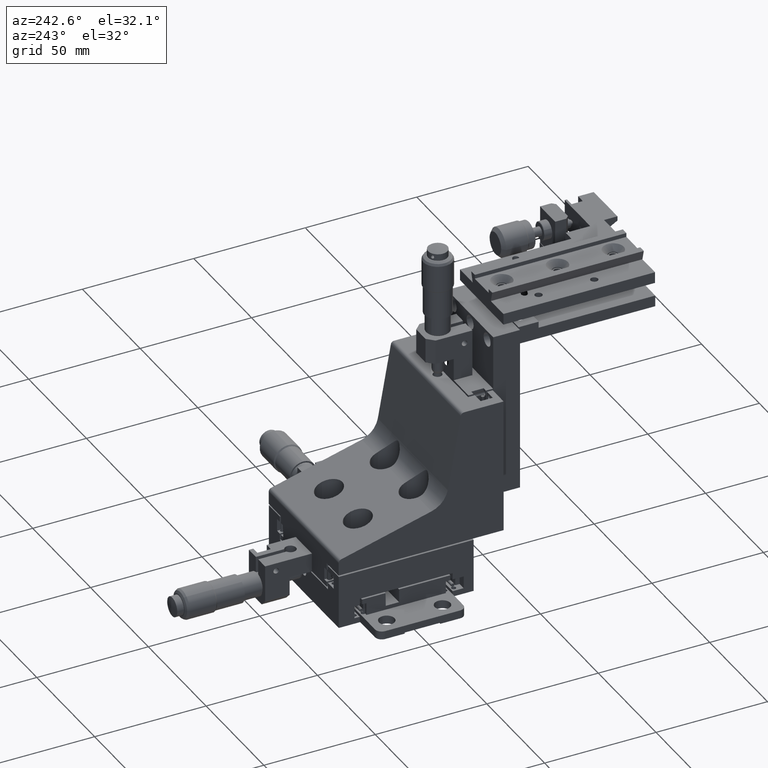
[diagram: clean part render]
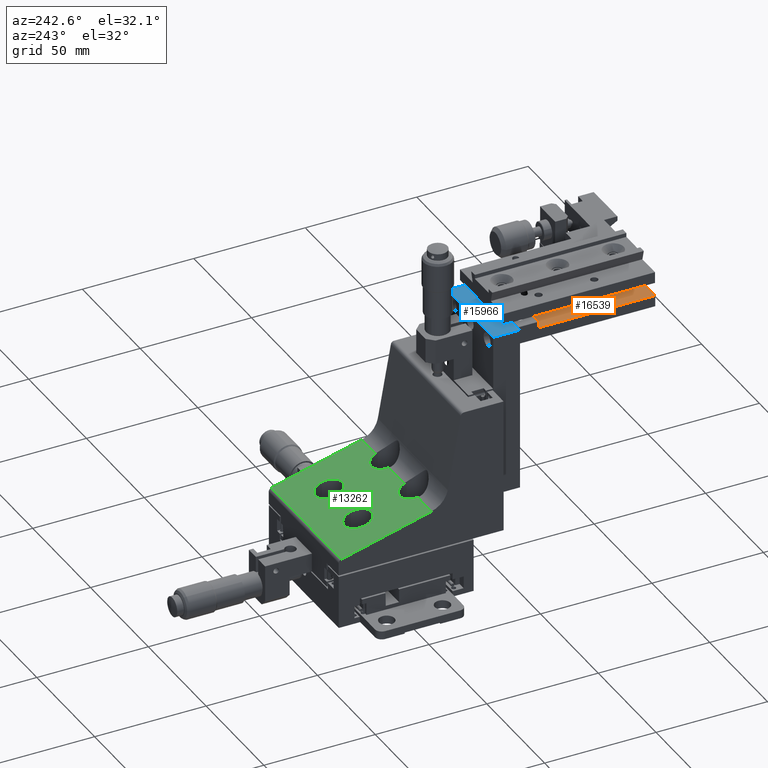
[diagram: same view with three faces highlighted in distinct colors, each labeled with its STEP entity id]
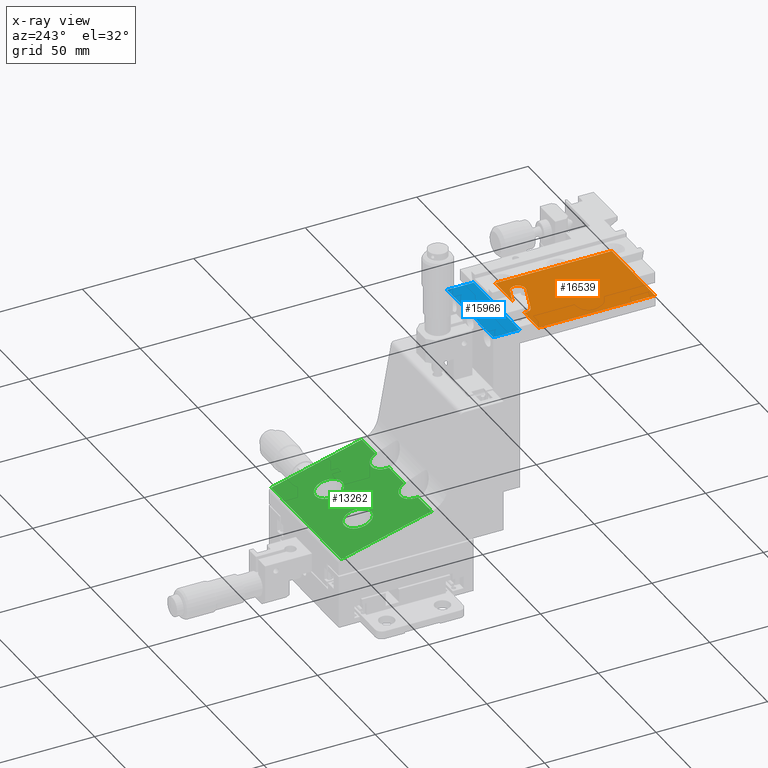
[diagram: x-ray of the same camera — body ghosted, the three highlighted faces saturated]
A machine part, auxiliary view with three faces highlighted in distinct colors.
The next image is the same camera in x-ray (body ghosted, the three faces saturated) — at least one of them is partly hidden behind the body in this view.
Their STEP definitions:

[orange] entity #16539 — the highlighted planar face has unit normal (-0, -0, -1).
#1245 = CARTESIAN_POINT ( 'NONE',  ( -16.14042963094961200, -58.04289046558762500, 108.3500000000005900 ) ) ;
#2235 = LINE ( 'NONE', #1245, #2514 ) ;
#2514 = VECTOR ( 'NONE', #2980, 1000.000000000000200 ) ;
#2595 = CARTESIAN_POINT ( 'NONE',  ( 8.966282879694688300, -74.09814202083370600, 108.3500000000006200 ) ) ;
#2803 = CARTESIAN_POINT ( 'NONE',  ( 10.07784834550303700, -71.04414100327946400, 108.3500000000006200 ) ) ;
#2807 = DIRECTION ( 'NONE',  ( -2.220446049250312600E-016, -2.484711615216908600E-015, -1.000000000000000000 ) ) ;
#2808 = AXIS2_PLACEMENT_3D ( 'NONE', #2803, #2807, #2861 ) ;
#2809 = CIRCLE ( 'NONE', #2808, 3.250000000000001300 ) ;
#2821 = CARTESIAN_POINT ( 'NONE',  ( 10.07784834550311500, -74.29414100327946400, 108.3500000000006200 ) ) ;
#2861 = DIRECTION ( 'NONE',  ( 1.000000000000000000, 2.562053133750360300E-014, 0.0000000000000000000 ) ) ;
#2922 = CARTESIAN_POINT ( 'NONE',  ( 3.935688816331315700, -65.34999999999993700, 108.3500000000006100 ) ) ;
#2980 = DIRECTION ( 'NONE',  ( 0.9396926207859165300, -0.3420201433256459500, 6.411677460260658900E-016 ) ) ;
#3058 = LINE ( 'NONE', #3093, #3092 ) ;
#3059 = CARTESIAN_POINT ( 'NONE',  ( -18.79999999999846900, -65.35000000000049200, 108.3500000000006100 ) ) ;
#3067 = CARTESIAN_POINT ( 'NONE',  ( -18.79999999999846900, -65.35000000000049200, 108.3500000000006100 ) ) ;
#3068 = LINE ( 'NONE', #3067, #3097 ) ;
#3090 = CARTESIAN_POINT ( 'NONE',  ( -18.79999999999717600, -117.6500000000005000, 108.3500000000007300 ) ) ;
#3091 = DIRECTION ( 'NONE',  ( -2.475475286026554100E-014, 1.000000000000000000, -2.484711615216902600E-015 ) ) ;
#3092 = VECTOR ( 'NONE', #3091, 1000.000000000000000 ) ;
#3093 = CARTESIAN_POINT ( 'NONE',  ( -18.79999999999846900, -65.35000000000049200, 108.3500000000006100 ) ) ;
#3096 = DIRECTION ( 'NONE',  ( 1.000000000000000000, 2.475475286026553800E-014, -2.220446049250312600E-016 ) ) ;
#3097 = VECTOR ( 'NONE', #3096, 1000.000000000000000 ) ;
#3099 = CARTESIAN_POINT ( 'NONE',  ( 18.80000000000153900, -65.34999999999956800, 108.3500000000006100 ) ) ;
#3119 = CARTESIAN_POINT ( 'NONE',  ( 18.80000000000283200, -117.6499999999995700, 108.3500000000007200 ) ) ;
#3214 = DIRECTION ( 'NONE',  ( -2.475475286026554100E-014, 1.000000000000000000, -2.484711615216902600E-015 ) ) ;
#3215 = VECTOR ( 'NONE', #3214, 1000.000000000000000 ) ;
#3216 = CARTESIAN_POINT ( 'NONE',  ( 18.80000000000153900, -65.34999999999956800, 108.3500000000006100 ) ) ;
#3217 = LINE ( 'NONE', #3216, #3215 ) ;
#3257 = DIRECTION ( 'NONE',  ( 1.000000000000000000, 2.475475286026553800E-014, -2.220446049250312600E-016 ) ) ;
#3258 = VECTOR ( 'NONE', #3257, 1000.000000000000000 ) ;
#3259 = CARTESIAN_POINT ( 'NONE',  ( -18.79999999999717600, -117.6500000000005000, 108.3500000000007300 ) ) ;
#3260 = LINE ( 'NONE', #3259, #3258 ) ;
#3265 = CARTESIAN_POINT ( 'NONE',  ( 11.18941381131138600, -67.99013998572523600, 108.3500000000006100 ) ) ;
#3397 = FACE_OUTER_BOUND ( 'NONE', #13370, .T. ) ;
#3401 = DIRECTION ( 'NONE',  ( -0.9396926207859164200, 0.3420201433256464500, -6.411677460260671700E-016 ) ) ;
#3402 = CARTESIAN_POINT ( 'NONE',  ( -18.36356056256631000, -64.15089250069607400, 108.3500000000006100 ) ) ;
#3403 = LINE ( 'NONE', #3402, #3459 ) ;
#3406 = DIRECTION ( 'NONE',  ( 1.000000000000000000, 2.562053133750360300E-014, 0.0000000000000000000 ) ) ;
#3407 = DIRECTION ( 'NONE',  ( -2.220446049250312600E-016, -2.484711615216908600E-015, -1.000000000000000000 ) ) ;
#3408 = CARTESIAN_POINT ( 'NONE',  ( 10.07784834550303700, -71.04414100327946400, 108.3500000000006200 ) ) ;
#3409 = AXIS2_PLACEMENT_3D ( 'NONE', #3408, #3407, #3406 ) ;
#3414 = DIRECTION ( 'NONE',  ( 1.000000000000000000, 2.562053133750362900E-014, 0.0000000000000000000 ) ) ;
#3415 = DIRECTION ( 'NONE',  ( -2.220446049250312600E-016, -2.484711615216908600E-015, -1.000000000000000000 ) ) ;
#3416 = CARTESIAN_POINT ( 'NONE',  ( -3.077848345499794500, -66.25585899672042000, 108.3500000000006100 ) ) ;
#3422 = CIRCLE ( 'NONE', #3409, 3.250000000000001300 ) ;
#3425 = CIRCLE ( 'NONE', #3431, 3.249999999999997800 ) ;
#3431 = AXIS2_PLACEMENT_3D ( 'NONE', #3416, #3415, #3414 ) ;
#3436 = DIRECTION ( 'NONE',  ( 1.000000000000000000, 2.475475286026553800E-014, -2.220446049250312600E-016 ) ) ;
#3437 = VECTOR ( 'NONE', #3436, 1000.000000000000000 ) ;
#3438 = CARTESIAN_POINT ( 'NONE',  ( -18.79999999999846900, -65.35000000000049200, 108.3500000000006100 ) ) ;
#3439 = LINE ( 'NONE', #3438, #3437 ) ;
#3446 = CARTESIAN_POINT ( 'NONE',  ( -4.189413811308145200, -69.30986001427464800, 108.3500000000006200 ) ) ;
#3447 = DIRECTION ( 'NONE',  ( 1.000000000000000000, 2.475475286026553800E-014, -2.220446049250312600E-016 ) ) ;
#3448 = DIRECTION ( 'NONE',  ( -2.220446049249697500E-016, -2.484711615216908200E-015, -1.000000000000000000 ) ) ;
#3449 = CARTESIAN_POINT ( 'NONE',  ( -18.79999999999846900, -65.35000000000049200, 108.3500000000006100 ) ) ;
#3450 = AXIS2_PLACEMENT_3D ( 'NONE', #3449, #3448, #3447 ) ;
#3452 = CARTESIAN_POINT ( 'NONE',  ( -6.199053157437165700, -65.35000000000017900, 108.3500000000006100 ) ) ;
#3457 = PLANE ( 'NONE',  #3450 ) ;
#3459 = VECTOR ( 'NONE', #3401, 1000.000000000000100 ) ;
#13370 = EDGE_LOOP ( 'NONE', ( #15644, #16540, #16536, #16523, #16524, #16520, #16526, #16522, #16529, #16525 ) ) ;
#15644 = ORIENTED_EDGE ( 'NONE', *, *, #16538, .T. ) ;
#16073 = VERTEX_POINT ( 'NONE', #2595 ) ;
#16206 = VERTEX_POINT ( 'NONE', #2821 ) ;
#16213 = EDGE_CURVE ( 'NONE', #16206, #16073, #2809, .T. ) ;
#16272 = VERTEX_POINT ( 'NONE', #2922 ) ;
#16322 = EDGE_CURVE ( 'NONE', #16272, #16323, #3068, .T. ) ;
#16323 = VERTEX_POINT ( 'NONE', #3099 ) ;
#16324 = EDGE_CURVE ( 'NONE', #16331, #16326, #3058, .T. ) ;
#16326 = VERTEX_POINT ( 'NONE', #3059 ) ;
#16331 = VERTEX_POINT ( 'NONE', #3090 ) ;
#16353 = VERTEX_POINT ( 'NONE', #3119 ) ;
#16402 = EDGE_CURVE ( 'NONE', #16353, #16323, #3217, .T. ) ;
#16419 = EDGE_CURVE ( 'NONE', #16331, #16353, #3260, .T. ) ;
#16436 = VERTEX_POINT ( 'NONE', #3265 ) ;
#16440 = EDGE_CURVE ( 'NONE', #16272, #16436, #2235, .T. ) ;
#16519 = EDGE_CURVE ( 'NONE', #16543, #16542, #3425, .T. ) ;
#16520 = ORIENTED_EDGE ( 'NONE', *, *, #16402, .T. ) ;
#16522 = ORIENTED_EDGE ( 'NONE', *, *, #16440, .T. ) ;
#16523 = ORIENTED_EDGE ( 'NONE', *, *, #16324, .F. ) ;
#16524 = ORIENTED_EDGE ( 'NONE', *, *, #16419, .T. ) ;
#16525 = ORIENTED_EDGE ( 'NONE', *, *, #16213, .T. ) ;
#16526 = ORIENTED_EDGE ( 'NONE', *, *, #16322, .F. ) ;
#16527 = EDGE_CURVE ( 'NONE', #16436, #16206, #3422, .T. ) ;
#16529 = ORIENTED_EDGE ( 'NONE', *, *, #16527, .T. ) ;
#16536 = ORIENTED_EDGE ( 'NONE', *, *, #16549, .F. ) ;
#16538 = EDGE_CURVE ( 'NONE', #16073, #16543, #3403, .T. ) ;
#16539 = ADVANCED_FACE ( 'NONE', ( #3397 ), #3457, .F. ) ;
#16540 = ORIENTED_EDGE ( 'NONE', *, *, #16519, .T. ) ;
#16542 = VERTEX_POINT ( 'NONE', #3452 ) ;
#16543 = VERTEX_POINT ( 'NONE', #3446 ) ;
#16549 = EDGE_CURVE ( 'NONE', #16326, #16542, #3439, .T. ) ;

[blue] entity #15966 — the highlighted planar face has unit normal (0, -0, -1).
#2279 = CARTESIAN_POINT ( 'NONE',  ( 20.00000000000101300, -44.34999999999953200, 110.5500000000005500 ) ) ;
#2316 = CARTESIAN_POINT ( 'NONE',  ( -19.99999999999868900, -56.35000000000052700, 110.5500000000005700 ) ) ;
#2362 = AXIS2_PLACEMENT_3D ( 'NONE', #2412, #2389, #2388 ) ;
#2388 = DIRECTION ( 'NONE',  ( 1.000000000000000000, 2.475475286026553800E-014, 2.946541328396145400E-016 ) ) ;
#2389 = DIRECTION ( 'NONE',  ( 2.946541328396760700E-016, -2.484711615216906600E-015, -1.000000000000000000 ) ) ;
#2390 = CARTESIAN_POINT ( 'NONE',  ( -19.99999999999868900, -56.35000000000052700, 110.5500000000005700 ) ) ;
#2391 = LINE ( 'NONE', #2390, #2447 ) ;
#2392 = DIRECTION ( 'NONE',  ( -1.000000000000000000, -2.475475286026553800E-014, -2.946541328396145900E-016 ) ) ;
#2393 = CARTESIAN_POINT ( 'NONE',  ( -19.99999999999868900, -56.35000000000052700, 110.5500000000005700 ) ) ;
#2394 = PLANE ( 'NONE',  #2362 ) ;
#2395 = DIRECTION ( 'NONE',  ( -1.000000000000000000, -2.475475286026553800E-014, -2.946541328396145900E-016 ) ) ;
#2396 = VECTOR ( 'NONE', #2395, 1000.000000000000000 ) ;
#2397 = CARTESIAN_POINT ( 'NONE',  ( -19.99999999999898700, -44.35000000000052700, 110.5500000000005400 ) ) ;
#2398 = LINE ( 'NONE', #2397, #2396 ) ;
#2400 = LINE ( 'NONE', #2393, #2445 ) ;
#2411 = FACE_OUTER_BOUND ( 'NONE', #15928, .T. ) ;
#2412 = CARTESIAN_POINT ( 'NONE',  ( -19.99999999999868900, -56.35000000000052700, 110.5500000000005700 ) ) ;
#2430 = CARTESIAN_POINT ( 'NONE',  ( 20.00000000000131100, -56.34999999999954000, 110.5500000000005800 ) ) ;
#2432 = DIRECTION ( 'NONE',  ( -2.475475286026554100E-014, 1.000000000000000000, -2.484711615216901100E-015 ) ) ;
#2433 = VECTOR ( 'NONE', #2432, 1000.000000000000000 ) ;
#2434 = CARTESIAN_POINT ( 'NONE',  ( 20.00000000000131100, -56.34999999999954000, 110.5500000000005800 ) ) ;
#2435 = LINE ( 'NONE', #2434, #2433 ) ;
#2436 = CARTESIAN_POINT ( 'NONE',  ( -19.99999999999898700, -44.35000000000052700, 110.5500000000005400 ) ) ;
#2445 = VECTOR ( 'NONE', #2392, 1000.000000000000000 ) ;
#2446 = DIRECTION ( 'NONE',  ( -2.475475286026554100E-014, 1.000000000000000000, -2.484711615216901100E-015 ) ) ;
#2447 = VECTOR ( 'NONE', #2446, 1000.000000000000000 ) ;
#15907 = VERTEX_POINT ( 'NONE', #2279 ) ;
#15917 = VERTEX_POINT ( 'NONE', #2316 ) ;
#15920 = ORIENTED_EDGE ( 'NONE', *, *, #15971, .F. ) ;
#15928 = EDGE_LOOP ( 'NONE', ( #15967, #15970, #15920, #15975 ) ) ;
#15964 = EDGE_CURVE ( 'NONE', #15907, #15982, #2398, .T. ) ;
#15966 = ADVANCED_FACE ( 'NONE', ( #2411 ), #2394, .F. ) ;
#15967 = ORIENTED_EDGE ( 'NONE', *, *, #15964, .T. ) ;
#15968 = EDGE_CURVE ( 'NONE', #15917, #15982, #2391, .T. ) ;
#15970 = ORIENTED_EDGE ( 'NONE', *, *, #15968, .F. ) ;
#15971 = EDGE_CURVE ( 'NONE', #15981, #15917, #2400, .T. ) ;
#15975 = ORIENTED_EDGE ( 'NONE', *, *, #15979, .T. ) ;
#15979 = EDGE_CURVE ( 'NONE', #15981, #15907, #2435, .T. ) ;
#15981 = VERTEX_POINT ( 'NONE', #2430 ) ;
#15982 = VERTEX_POINT ( 'NONE', #2436 ) ;

[green] entity #13262 — the highlighted planar face has unit normal (0, -0.2588, -0.9659).
#149 = VERTEX_POINT ( 'NONE', #22115 ) ;
#166 = VERTEX_POINT ( 'NONE', #22112 ) ;
#205 = EDGE_CURVE ( 'NONE', #166, #149, #22191, .T. ) ;
#2004 = VERTEX_POINT ( 'NONE', #22316 ) ;
#3509 = EDGE_CURVE ( 'NONE', #2004, #149, #22269, .T. ) ;
#5247 = VERTEX_POINT ( 'NONE', #22428 ) ;
#5329 = EDGE_CURVE ( 'NONE', #5247, #166, #22420, .T. ) ;
#7578 = EDGE_CURVE ( 'NONE', #13502, #13512, #22443, .T. ) ;
#13247 = EDGE_LOOP ( 'NONE', ( #13249, #13300 ) ) ;
#13248 = ORIENTED_EDGE ( 'NONE', *, *, #13492, .T. ) ;
#13249 = ORIENTED_EDGE ( 'NONE', *, *, #13517, .T. ) ;
#13259 = EDGE_LOOP ( 'NONE', ( #13248, #13279 ) ) ;
#13262 = ADVANCED_FACE ( 'NONE', ( #22488, #22579, #22577 ), #22581, .F. ) ;
#13264 = EDGE_LOOP ( 'NONE', ( #13294, #13299, #13283, #13293, #13280, #13286, #13330, #13284 ) ) ;
#13266 = EDGE_CURVE ( 'NONE', #13524, #13429, #22563, .T. ) ;
#13279 = ORIENTED_EDGE ( 'NONE', *, *, #13287, .T. ) ;
#13280 = ORIENTED_EDGE ( 'NONE', *, *, #13288, .T. ) ;
#13283 = ORIENTED_EDGE ( 'NONE', *, *, #13266, .T. ) ;
#13284 = ORIENTED_EDGE ( 'NONE', *, *, #3509, .F. ) ;
#13286 = ORIENTED_EDGE ( 'NONE', *, *, #5329, .T. ) ;
#13287 = EDGE_CURVE ( 'NONE', #13486, #13473, #22588, .T. ) ;
#13288 = EDGE_CURVE ( 'NONE', #13460, #5247, #22591, .T. ) ;
#13293 = ORIENTED_EDGE ( 'NONE', *, *, #13483, .T. ) ;
#13294 = ORIENTED_EDGE ( 'NONE', *, *, #13302, .T. ) ;
#13299 = ORIENTED_EDGE ( 'NONE', *, *, #13556, .T. ) ;
#13300 = ORIENTED_EDGE ( 'NONE', *, *, #7578, .T. ) ;
#13302 = EDGE_CURVE ( 'NONE', #2004, #13553, #22636, .T. ) ;
#13330 = ORIENTED_EDGE ( 'NONE', *, *, #205, .T. ) ;
#13429 = VERTEX_POINT ( 'NONE', #22760 ) ;
#13460 = VERTEX_POINT ( 'NONE', #22754 ) ;
#13473 = VERTEX_POINT ( 'NONE', #22743 ) ;
#13483 = EDGE_CURVE ( 'NONE', #13429, #13460, #22765, .T. ) ;
#13486 = VERTEX_POINT ( 'NONE', #22769 ) ;
#13492 = EDGE_CURVE ( 'NONE', #13473, #13486, #22790, .T. ) ;
#13502 = VERTEX_POINT ( 'NONE', #22824 ) ;
#13512 = VERTEX_POINT ( 'NONE', #22850 ) ;
#13517 = EDGE_CURVE ( 'NONE', #13512, #13502, #22886, .T. ) ;
#13524 = VERTEX_POINT ( 'NONE', #22872 ) ;
#13553 = VERTEX_POINT ( 'NONE', #22963 ) ;
#13556 = EDGE_CURVE ( 'NONE', #13553, #13524, #22955, .T. ) ;
#22112 = CARTESIAN_POINT ( 'NONE',  ( 30.24999999999999600, 29.18822856765379500, 33.09789825746474200 ) ) ;
#22115 = CARTESIAN_POINT ( 'NONE',  ( -30.25000000000000000, 29.18822856765378000, 33.09789825746474200 ) ) ;
#22177 = DIRECTION ( 'NONE',  ( -1.000000000000000000, -1.224646799147353700E-016, -4.930380657631323800E-032 ) ) ;
#22178 = VECTOR ( 'NONE', #22177, 1000.000000000000000 ) ;
#22179 = CARTESIAN_POINT ( 'NONE',  ( -30.25000000000000000, 29.18822856765378000, 33.09789825746474200 ) ) ;
#22191 = LINE ( 'NONE', #22179, #22178 ) ;
#22268 = CARTESIAN_POINT ( 'NONE',  ( -30.25000000000000000, 30.30000000000000800, 32.79999999999958500 ) ) ;
#22269 = LINE ( 'NONE', #22268, #22350 ) ;
#22316 = CARTESIAN_POINT ( 'NONE',  ( -30.25000000000000000, -11.37250593237641100, 43.96611431116087200 ) ) ;
#22345 = DIRECTION ( 'NONE',  ( -1.182917971378671300E-016, 0.9659258262890692000, -0.2588190451025176300 ) ) ;
#22350 = VECTOR ( 'NONE', #22345, 1000.000000000000000 ) ;
#22410 = DIRECTION ( 'NONE',  ( -1.182917971378671300E-016, 0.9659258262890692000, -0.2588190451025176300 ) ) ;
#22411 = VECTOR ( 'NONE', #22410, 1000.000000000000000 ) ;
#22419 = CARTESIAN_POINT ( 'NONE',  ( 30.24999999999999600, 30.30000000000002200, 32.79999999999958500 ) ) ;
#22420 = LINE ( 'NONE', #22419, #22411 ) ;
#22428 = CARTESIAN_POINT ( 'NONE',  ( 30.25000000000000400, -11.37250593237640400, 43.96611431116087200 ) ) ;
#22437 = CARTESIAN_POINT ( 'NONE',  ( 6.499999999999991100, 12.50000000000002100, 37.56949562527351100 ) ) ;
#22438 = CARTESIAN_POINT ( 'NONE',  ( 6.499999999999979600, 0.5000000000000056600, 40.78488593444694000 ) ) ;
#22439 = CARTESIAN_POINT ( 'NONE',  ( 18.50000000000000400, 0.5000000000000038900, 40.78488593444694000 ) ) ;
#22440 = CARTESIAN_POINT ( 'NONE',  ( 18.49999999999999600, 12.50000000000002100, 37.56949562527351100 ) ) ;
#22443 =( BOUNDED_CURVE ( )  B_SPLINE_CURVE ( 3, ( #22440, #22439, #22438, #22437 ),
 .UNSPECIFIED., .F., .F. ) 
 B_SPLINE_CURVE_WITH_KNOTS ( ( 4, 4 ),
 ( 4.712388980384689700, 7.853981633974483700 ),
 .UNSPECIFIED. ) 
 CURVE ( )  GEOMETRIC_REPRESENTATION_ITEM ( )  RATIONAL_B_SPLINE_CURVE ( ( 1.000000000000000000, 0.3333333333333330400, 0.3333333333333330400, 1.000000000000000000 ) ) 
 REPRESENTATION_ITEM ( '' )  );
#22488 = FACE_BOUND ( 'NONE', #13259, .T. ) ;
#22557 = DIRECTION ( 'NONE',  ( 1.000000000000000000, 1.224646799147353700E-016, 4.930380657631323800E-032 ) ) ;
#22558 = VECTOR ( 'NONE', #22557, 1000.000000000000000 ) ;
#22563 = LINE ( 'NONE', #22565, #22558 ) ;
#22565 = CARTESIAN_POINT ( 'NONE',  ( 30.25000000000000400, -11.37250593237640400, 43.96611431116087200 ) ) ;
#22567 = DIRECTION ( 'NONE',  ( 1.182917971378671100E-016, -0.9659258262890690900, 0.2588190451025176900 ) ) ;
#22568 = DIRECTION ( 'NONE',  ( 3.169619151431733500E-017, -0.2588190451025177400, -0.9659258262890692000 ) ) ;
#22569 = CARTESIAN_POINT ( 'NONE',  ( -30.25000000000000000, 30.30000000000000800, 32.79999999999958500 ) ) ;
#22577 = FACE_OUTER_BOUND ( 'NONE', #13264, .T. ) ;
#22578 = AXIS2_PLACEMENT_3D ( 'NONE', #22569, #22568, #22567 ) ;
#22579 = FACE_BOUND ( 'NONE', #13247, .T. ) ;
#22581 = PLANE ( 'NONE',  #22578 ) ;
#22582 = CARTESIAN_POINT ( 'NONE',  ( -18.50000000000000000, 12.49999999999998800, 37.56949562527351800 ) ) ;
#22583 = CARTESIAN_POINT ( 'NONE',  ( -18.50000000000000400, 0.4999999999999970000, 40.78488593444694700 ) ) ;
#22584 = CARTESIAN_POINT ( 'NONE',  ( -6.500000000000000000, 0.4999999999999952800, 40.78488593444694700 ) ) ;
#22585 = CARTESIAN_POINT ( 'NONE',  ( -6.499999999999995600, 12.49999999999998800, 37.56949562527351800 ) ) ;
#22588 =( BOUNDED_CURVE ( )  B_SPLINE_CURVE ( 3, ( #22585, #22584, #22583, #22582 ),
 .UNSPECIFIED., .F., .T. ) 
 B_SPLINE_CURVE_WITH_KNOTS ( ( 4, 4 ),
 ( 4.712388980384690600, 7.853981633974482800 ),
 .UNSPECIFIED. ) 
 CURVE ( )  GEOMETRIC_REPRESENTATION_ITEM ( )  RATIONAL_B_SPLINE_CURVE ( ( 1.000000000000000000, 0.3333333333333337000, 0.3333333333333337000, 1.000000000000000000 ) ) 
 REPRESENTATION_ITEM ( '' )  );
#22590 = CARTESIAN_POINT ( 'NONE',  ( 30.25000000000000400, -11.37250593237640400, 43.96611431116087200 ) ) ;
#22591 = LINE ( 'NONE', #22590, #22637 ) ;
#22595 = DIRECTION ( 'NONE',  ( 1.000000000000000000, 1.224646799147353700E-016, 4.930380657631323800E-032 ) ) ;
#22618 = DIRECTION ( 'NONE',  ( 1.000000000000000000, 1.224646799147353700E-016, 4.930380657631323800E-032 ) ) ;
#22619 = VECTOR ( 'NONE', #22618, 1000.000000000000000 ) ;
#22620 = CARTESIAN_POINT ( 'NONE',  ( 30.25000000000000400, -11.37250593237640400, 43.96611431116087200 ) ) ;
#22636 = LINE ( 'NONE', #22620, #22619 ) ;
#22637 = VECTOR ( 'NONE', #22595, 1000.000000000000000 ) ;
#22743 = CARTESIAN_POINT ( 'NONE',  ( -18.50000000000000000, 12.49999999999998800, 37.56949562527351800 ) ) ;
#22754 = CARTESIAN_POINT ( 'NONE',  ( 18.39311098889917800, -11.37250593237583400, 43.96611431116022600 ) ) ;
#22760 = CARTESIAN_POINT ( 'NONE',  ( 6.606889011101717600, -11.37250593237640400, 43.96611431116087200 ) ) ;
#22763 = CARTESIAN_POINT ( 'NONE',  ( 8.216690883852869800, -2.958500591972283100, 41.71158837508846100 ) ) ;
#22764 = CARTESIAN_POINT ( 'NONE',  ( 6.606889011101717600, -11.37250593237640400, 43.96611431116087200 ) ) ;
#22765 =( BOUNDED_CURVE ( )  B_SPLINE_CURVE ( 3, ( #22764, #22763, #22808, #22807 ),
 .UNSPECIFIED., .F., .T. ) 
 B_SPLINE_CURVE_WITH_KNOTS ( ( 4, 4 ),
 ( 1.759835913337043800, 4.523349393842456900 ),
 .UNSPECIFIED. ) 
 CURVE ( )  GEOMETRIC_REPRESENTATION_ITEM ( )  RATIONAL_B_SPLINE_CURVE ( ( 1.000000000000000000, 0.4586104519582048200, 0.4586104519582048200, 1.000000000000000000 ) ) 
 REPRESENTATION_ITEM ( '' )  );
#22769 = CARTESIAN_POINT ( 'NONE',  ( -6.499999999999995600, 12.49999999999998800, 37.56949562527351800 ) ) ;
#22786 = CARTESIAN_POINT ( 'NONE',  ( -6.499999999999995600, 12.49999999999998800, 37.56949562527351800 ) ) ;
#22787 = CARTESIAN_POINT ( 'NONE',  ( -6.499999999999985800, 24.50000000000000700, 34.35410531610008200 ) ) ;
#22788 = CARTESIAN_POINT ( 'NONE',  ( -18.50000000000001100, 24.50000000000000700, 34.35410531610008200 ) ) ;
#22789 = CARTESIAN_POINT ( 'NONE',  ( -18.50000000000000000, 12.49999999999998800, 37.56949562527351800 ) ) ;
#22790 =( BOUNDED_CURVE ( )  B_SPLINE_CURVE ( 3, ( #22789, #22788, #22787, #22786 ),
 .UNSPECIFIED., .F., .T. ) 
 B_SPLINE_CURVE_WITH_KNOTS ( ( 4, 4 ),
 ( 1.570796326794896100, 4.712388980384690600 ),
 .UNSPECIFIED. ) 
 CURVE ( )  GEOMETRIC_REPRESENTATION_ITEM ( )  RATIONAL_B_SPLINE_CURVE ( ( 1.000000000000000000, 0.3333333333333329300, 0.3333333333333329300, 1.000000000000000000 ) ) 
 REPRESENTATION_ITEM ( '' )  );
#22807 = CARTESIAN_POINT ( 'NONE',  ( 18.39311098889917800, -11.37250593237583400, 43.96611431116022600 ) ) ;
#22808 = CARTESIAN_POINT ( 'NONE',  ( 16.78330911614630200, -2.958500591971913600, 41.71158837508835400 ) ) ;
#22824 = CARTESIAN_POINT ( 'NONE',  ( 18.49999999999999600, 12.50000000000002100, 37.56949562527351100 ) ) ;
#22850 = CARTESIAN_POINT ( 'NONE',  ( 6.499999999999991100, 12.50000000000002100, 37.56949562527351100 ) ) ;
#22872 = CARTESIAN_POINT ( 'NONE',  ( -6.606889011100819600, -11.37250593237584100, 43.96611431116022600 ) ) ;
#22881 = CARTESIAN_POINT ( 'NONE',  ( 18.49999999999999600, 12.50000000000002100, 37.56949562527351100 ) ) ;
#22882 = CARTESIAN_POINT ( 'NONE',  ( 18.49999999999999600, 24.50000000000001800, 34.35410531610008900 ) ) ;
#22883 = CARTESIAN_POINT ( 'NONE',  ( 6.499999999999994700, 24.50000000000001800, 34.35410531610008900 ) ) ;
#22884 = CARTESIAN_POINT ( 'NONE',  ( 6.499999999999991100, 12.50000000000002100, 37.56949562527351100 ) ) ;
#22886 =( BOUNDED_CURVE ( )  B_SPLINE_CURVE ( 3, ( #22884, #22883, #22882, #22881 ),
 .UNSPECIFIED., .F., .T. ) 
 B_SPLINE_CURVE_WITH_KNOTS ( ( 4, 4 ),
 ( 1.570796326794897200, 4.712388980384689700 ),
 .UNSPECIFIED. ) 
 CURVE ( )  GEOMETRIC_REPRESENTATION_ITEM ( )  RATIONAL_B_SPLINE_CURVE ( ( 1.000000000000000000, 0.3333333333333337000, 0.3333333333333337000, 1.000000000000000000 ) ) 
 REPRESENTATION_ITEM ( '' )  );
#22955 =( BOUNDED_CURVE ( )  B_SPLINE_CURVE ( 3, ( #23013, #23012, #23011, #23010 ),
 .UNSPECIFIED., .F., .T. ) 
 B_SPLINE_CURVE_WITH_KNOTS ( ( 4, 4 ),
 ( 1.759835913337045600, 4.523349393842455200 ),
 .UNSPECIFIED. ) 
 CURVE ( )  GEOMETRIC_REPRESENTATION_ITEM ( )  RATIONAL_B_SPLINE_CURVE ( ( 1.000000000000000000, 0.4586104519582059900, 0.4586104519582059900, 1.000000000000000000 ) ) 
 REPRESENTATION_ITEM ( '' )  );
#22963 = CARTESIAN_POINT ( 'NONE',  ( -18.39311098889827200, -11.37250593237641100, 43.96611431116087200 ) ) ;
#23010 = CARTESIAN_POINT ( 'NONE',  ( -6.606889011100819600, -11.37250593237584100, 43.96611431116022600 ) ) ;
#23011 = CARTESIAN_POINT ( 'NONE',  ( -8.216690883853704700, -2.958500591971950000, 41.71158837508836800 ) ) ;
#23012 = CARTESIAN_POINT ( 'NONE',  ( -16.78330911614710900, -2.958500591972317700, 41.71158837508847500 ) ) ;
#23013 = CARTESIAN_POINT ( 'NONE',  ( -18.39311098889827200, -11.37250593237641100, 43.96611431116087200 ) ) ;